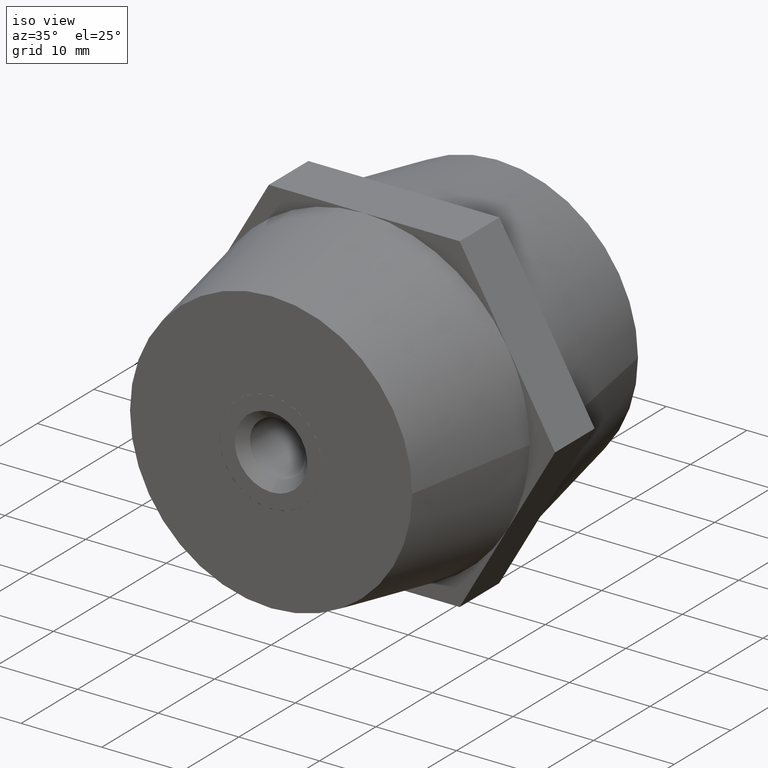
[diagram: clean part render]
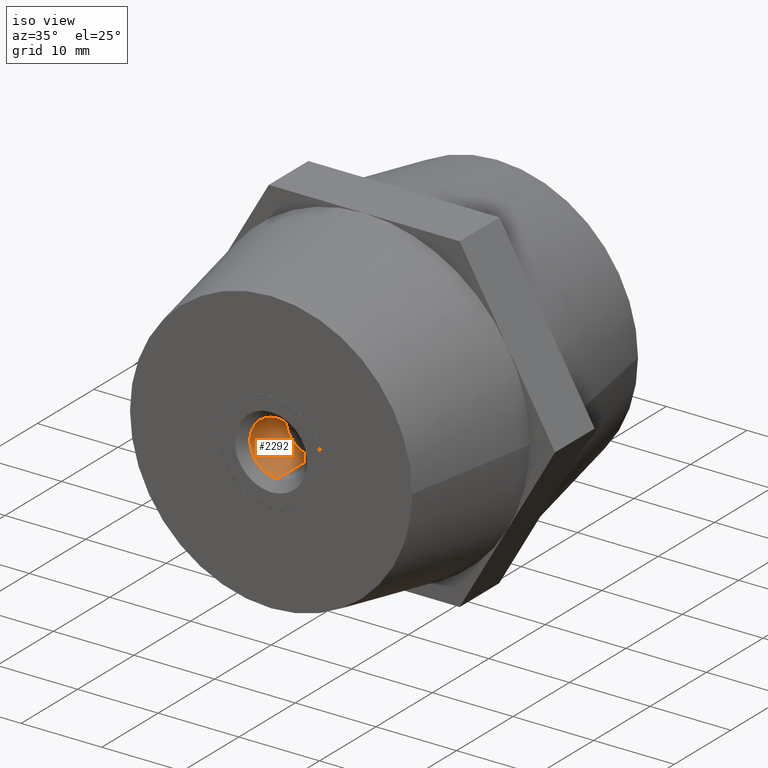
[diagram: same view with one face highlighted and labeled with its STEP entity id]
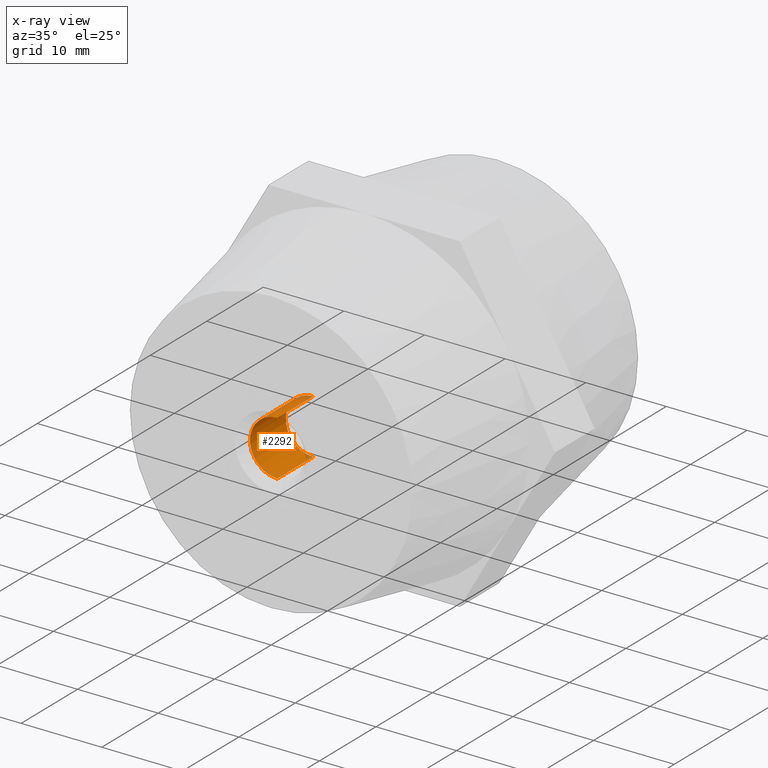
[diagram: x-ray of the same camera — body ghosted, the highlighted face saturated]
A machine part, iso view. The second image highlights one B-rep face of the part: STEP entity #2292.
The next image is the same camera in x-ray: the body ghosted, the highlighted face saturated — about 4% of this face is hidden behind the body in this view.
In plain terms, the highlighted cylindrical surface (edge-blend (fillet) strip) has radius 3.4 mm, axis along (0, -1, 0).
Its self-contained STEP definition (entity closure, byte-faithful):
#118 = CIRCLE ( 'NONE', #2718, 3.399999999999999900 ) ;
#167 = DIRECTION ( 'NONE',  ( 0.0000000000000000000, 1.000000000000000000, 0.0000000000000000000 ) ) ;
#379 = CARTESIAN_POINT ( 'NONE',  ( 0.0000000000000000000, 10.00000000000000000, 3.399999999999999900 ) ) ;
#475 = ORIENTED_EDGE ( 'NONE', *, *, #1551, .F. ) ;
#685 = CARTESIAN_POINT ( 'NONE',  ( 0.0000000000000000000, 8.900000000000000400, 3.399999999999999900 ) ) ;
#832 = VERTEX_POINT ( 'NONE', #2143 ) ;
#886 = EDGE_LOOP ( 'NONE', ( #475, #1598, #1140, #3060 ) ) ;
#942 = LINE ( 'NONE', #379, #3239 ) ;
#986 = LINE ( 'NONE', #2491, #3235 ) ;
#1018 = CIRCLE ( 'NONE', #3563, 3.399999999999999900 ) ;
#1087 = DIRECTION ( 'NONE',  ( 0.0000000000000000000, 1.000000000000000000, 0.0000000000000000000 ) ) ;
#1136 = CARTESIAN_POINT ( 'NONE',  ( 0.0000000000000000000, 8.900000000000000400, 0.0000000000000000000 ) ) ;
#1140 = ORIENTED_EDGE ( 'NONE', *, *, #1395, .T. ) ;
#1355 = CARTESIAN_POINT ( 'NONE',  ( 0.0000000000000000000, 2.540000000000000000, 0.0000000000000000000 ) ) ;
#1374 = DIRECTION ( 'NONE',  ( 0.0000000000000000000, 1.000000000000000000, 0.0000000000000000000 ) ) ;
#1380 = DIRECTION ( 'NONE',  ( 0.0000000000000000000, 1.000000000000000000, 0.0000000000000000000 ) ) ;
#1385 = DIRECTION ( 'NONE',  ( 0.0000000000000000000, 0.0000000000000000000, 1.000000000000000000 ) ) ;
#1395 = EDGE_CURVE ( 'NONE', #2475, #2651, #942, .T. ) ;
#1551 = EDGE_CURVE ( 'NONE', #1805, #832, #986, .T. ) ;
#1598 = ORIENTED_EDGE ( 'NONE', *, *, #1599, .F. ) ;
#1599 = EDGE_CURVE ( 'NONE', #2475, #1805, #118, .T. ) ;
#1626 = DIRECTION ( 'NONE',  ( 0.0000000000000000000, 0.0000000000000000000, 1.000000000000000000 ) ) ;
#1805 = VERTEX_POINT ( 'NONE', #2979 ) ;
#1951 = CARTESIAN_POINT ( 'NONE',  ( 0.0000000000000000000, 10.00000000000000000, 0.0000000000000000000 ) ) ;
#2123 = DIRECTION ( 'NONE',  ( 0.0000000000000000000, 1.000000000000000000, 0.0000000000000000000 ) ) ;
#2143 = CARTESIAN_POINT ( 'NONE',  ( 4.163799117101000600E-016, 8.900000000000000400, -3.399999999999999900 ) ) ;
#2213 = FACE_OUTER_BOUND ( 'NONE', #886, .T. ) ;
#2292 = ADVANCED_FACE ( 'NONE', ( #2213 ), #2490, .F. ) ;
#2475 = VERTEX_POINT ( 'NONE', #2867 ) ;
#2490 = CYLINDRICAL_SURFACE ( 'NONE', #2645, 3.399999999999999900 ) ;
#2491 = CARTESIAN_POINT ( 'NONE',  ( 4.163799117101000600E-016, 10.00000000000000000, -3.399999999999999900 ) ) ;
#2645 = AXIS2_PLACEMENT_3D ( 'NONE', #1951, #1380, #1626 ) ;
#2651 = VERTEX_POINT ( 'NONE', #685 ) ;
#2718 = AXIS2_PLACEMENT_3D ( 'NONE', #1355, #1087, #1385 ) ;
#2752 = DIRECTION ( 'NONE',  ( 0.0000000000000000000, 0.0000000000000000000, 1.000000000000000000 ) ) ;
#2798 = EDGE_CURVE ( 'NONE', #2651, #832, #1018, .T. ) ;
#2867 = CARTESIAN_POINT ( 'NONE',  ( 0.0000000000000000000, 2.540000000000000000, 3.399999999999999900 ) ) ;
#2979 = CARTESIAN_POINT ( 'NONE',  ( 4.163799117101000600E-016, 2.540000000000000000, -3.399999999999999900 ) ) ;
#3060 = ORIENTED_EDGE ( 'NONE', *, *, #2798, .T. ) ;
#3235 = VECTOR ( 'NONE', #167, 1000.000000000000000 ) ;
#3239 = VECTOR ( 'NONE', #2123, 1000.000000000000000 ) ;
#3563 = AXIS2_PLACEMENT_3D ( 'NONE', #1136, #1374, #2752 ) ;